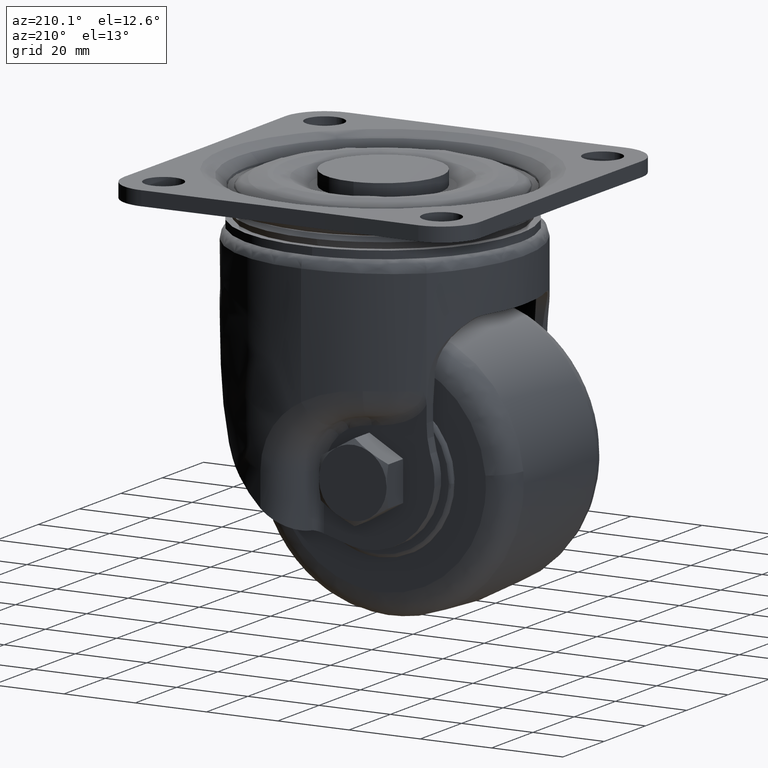
[diagram: clean part render]
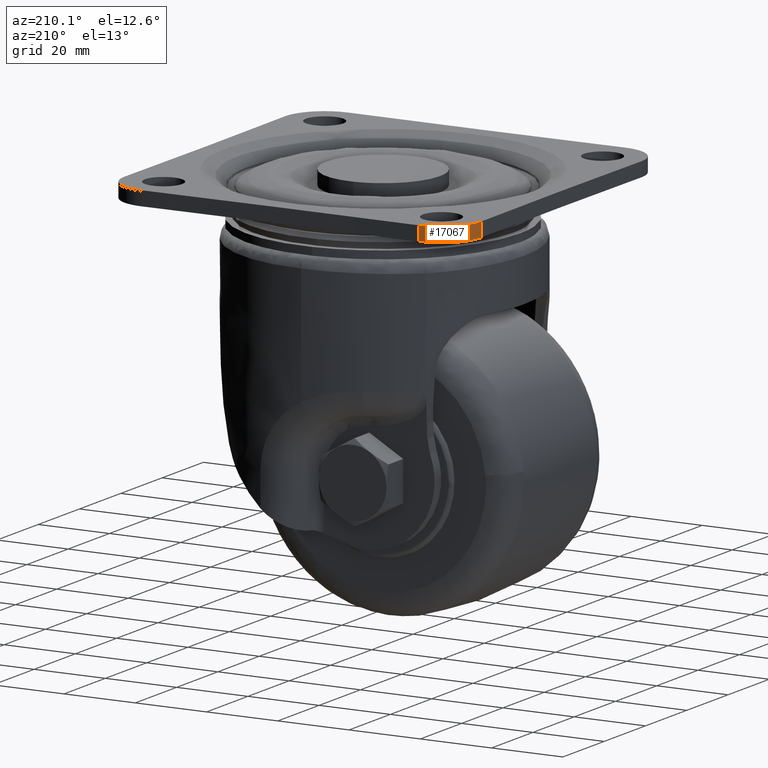
[diagram: same view with one face highlighted and labeled with its STEP entity id]
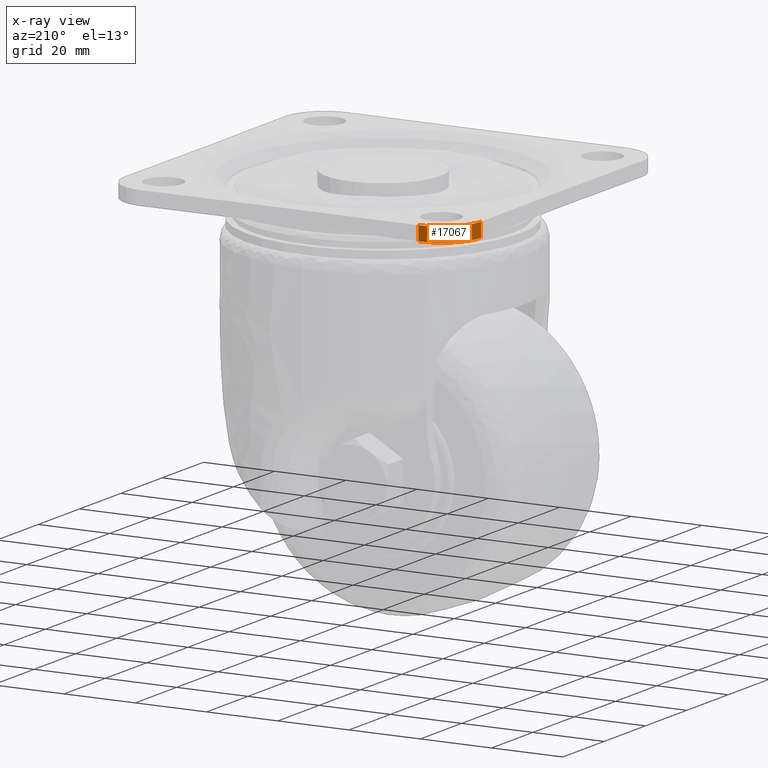
[diagram: x-ray of the same camera — body ghosted, the highlighted face saturated]
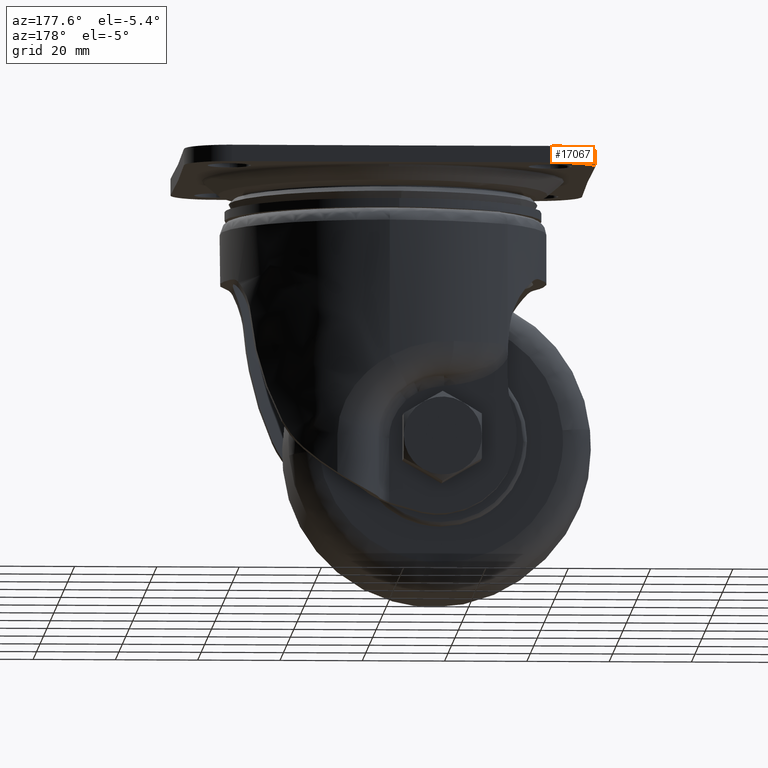
[diagram: same view with one face highlighted and labeled with its STEP entity id]
A machine part, auxiliary view. The second image highlights one B-rep face of the part: STEP entity #17067.
The next image is the same camera in x-ray: the body ghosted, the highlighted face saturated — about 0% of this face is hidden behind the body in this view.
A second angle (auxiliary view) of the same face is appended — the face is thin or edge-on in the first view.
In plain terms, the highlighted face is a freeform B-spline surface patch.
Its self-contained STEP definition (entity closure, byte-faithful):
#16683=CARTESIAN_POINT('',(-38.859172592322402,49.999087381304903,0.0));
#16684=VERTEX_POINT('',#16683);
#16698=CARTESIAN_POINT('',(-49.999113600735193,38.859141825077252,0.0));
#16699=VERTEX_POINT('',#16698);
#16700=CARTESIAN_POINT('',(-38.859172592322402,49.999087381304903,0.0));
#16701=CARTESIAN_POINT('',(-39.865213066904033,50.012390665620671,0.0));
#16702=CARTESIAN_POINT('',(-41.330838175129692,49.828501183736464,0.0));
#16703=CARTESIAN_POINT('',(-43.415812761010343,49.128430334916928,0.0));
#16704=CARTESIAN_POINT('',(-45.203847455734007,48.183912190046463,0.0));
#16705=CARTESIAN_POINT('',(-46.931267416434324,46.734482684405258,0.0));
#16706=CARTESIAN_POINT('',(-48.266529443362643,45.038211118198547,0.0));
#16707=CARTESIAN_POINT('',(-49.231586660992178,43.211739172483739,0.0));
#16708=CARTESIAN_POINT('',(-49.867787181001667,41.147497959673132,0.0));
#16709=CARTESIAN_POINT('',(-50.009207780252723,39.636500534122597,0.0));
#16710=CARTESIAN_POINT('',(-49.999113600735193,38.859141825077252,0.0));
#16711=B_SPLINE_CURVE_WITH_KNOTS('',3,(#16700,#16701,#16702,#16703,#16704,#16705,#16706,#16707,#16708,#16709,#16710),.UNSPECIFIED.,.F.,.U.,(4,1,1,1,1,1,1,1,4),(0.000000041193037,3.018236197495593,4.390163422996753,6.585253097896390,9.054691533246373,11.112583522299200,13.033292692487940,15.228390387014770,17.560649248636580),.UNSPECIFIED.);
#16712=EDGE_CURVE('',#16684,#16699,#16711,.T.);
#17003=CARTESIAN_POINT('',(-49.999113600735193,38.859141825077252,-4.000005999999945));
#17004=VERTEX_POINT('',#17003);
#17005=CARTESIAN_POINT('',(-49.999113600735193,38.859141825077252,-4.000005999999945));
#17006=CARTESIAN_POINT('',(-49.999113600735193,38.859141825077252,0.0));
#17007=QUASI_UNIFORM_CURVE('',1,(#17005,#17006),.UNSPECIFIED.,.F.,.U.);
#17008=EDGE_CURVE('',#17004,#16699,#17007,.T.);
#17027=CARTESIAN_POINT('',(-49.987207298379552,38.469448015062532,-4.100006149999944));
#17028=CARTESIAN_POINT('',(-49.987207298379552,38.469448015062532,0.102500153749999));
#17029=CARTESIAN_POINT('',(-50.593165121898593,51.014169969268217,-4.100006149999944));
#17030=CARTESIAN_POINT('',(-50.593165121898593,51.014169969268217,0.102500153749999));
#17031=CARTESIAN_POINT('',(-38.078028955668429,49.961268961133307,-4.100006149999944));
#17032=CARTESIAN_POINT('',(-38.078028955668429,49.961268961133307,0.102500153749998));
#17040=(BOUNDED_SURFACE()B_SPLINE_SURFACE(1,2,((#17027,#17029,#17031),(#17028,#17030,#17032)),.UNSPECIFIED.,.F.,.F.,.U.)B_SPLINE_SURFACE_WITH_KNOTS((2,2),(3,3),(0.0,4.202506303749942),(0.0,19.953039543417550),.UNSPECIFIED.)GEOMETRIC_REPRESENTATION_ITEM()RATIONAL_B_SPLINE_SURFACE(((1.0,0.657748628516973,0.996637401159318),(1.0,0.657748628516973,0.996637401159318)))REPRESENTATION_ITEM('')SURFACE());
#17041=ORIENTED_EDGE('',*,*,#16712,.F.);
#17042=CARTESIAN_POINT('',(-38.859172592322402,49.999087381304903,-4.000005999999945));
#17043=VERTEX_POINT('',#17042);
#17044=CARTESIAN_POINT('',(-38.859172592322402,49.999087381304903,-4.000005999999945));
#17045=CARTESIAN_POINT('',(-38.859172592322402,49.999087381304903,0.0));
#17046=QUASI_UNIFORM_CURVE('',1,(#17044,#17045),.UNSPECIFIED.,.F.,.U.);
#17047=EDGE_CURVE('',#17043,#16684,#17046,.T.);
#17048=ORIENTED_EDGE('',*,*,#17047,.F.);
#17049=CARTESIAN_POINT('',(-38.859172592322402,49.999087381304903,-4.000005999999945));
#17050=CARTESIAN_POINT('',(-39.865215246077952,50.012394350081053,-4.000005999999941));
#17051=CARTESIAN_POINT('',(-41.330829807296517,49.828485654199881,-4.000005999999963));
#17052=CARTESIAN_POINT('',(-43.415831220775893,49.128461967387103,-4.000005999999901));
#17053=CARTESIAN_POINT('',(-45.041250099649147,48.269692176618634,-4.000006000000011));
#17054=CARTESIAN_POINT('',(-46.548660317021707,47.067628872331120,-4.000005999999901));
#17055=CARTESIAN_POINT('',(-47.810214679658671,45.673475423619102,-4.000005999999982));
#17056=CARTESIAN_POINT('',(-48.821938831064870,44.085159640201837,-4.000005999999918));
#17057=CARTESIAN_POINT('',(-49.461787123870771,42.511784502138852,-4.000005999999922));
#17058=CARTESIAN_POINT('',(-49.901995124585802,40.781168723422383,-4.000005999999981));
#17059=CARTESIAN_POINT('',(-50.009227833379683,39.636507151425860,-4.000005999999939));
#17060=CARTESIAN_POINT('',(-49.999113600735193,38.859141825077252,-4.000005999999945));
#17061=B_SPLINE_CURVE_WITH_KNOTS('',3,(#17049,#17050,#17051,#17052,#17053,#17054,#17055,#17056,#17057,#17058,#17059,#17060),.UNSPECIFIED.,.F.,.U.,(4,1,1,1,1,1,1,1,1,4),(0.000000041193037,3.018236197495593,4.390163422996753,6.585253097896390,8.505953651905578,10.152218443306090,12.210133916401951,14.130839992902770,15.228390387014770,17.560649248636580),.UNSPECIFIED.);
#17062=EDGE_CURVE('',#17043,#17004,#17061,.T.);
#17063=ORIENTED_EDGE('',*,*,#17062,.T.);
#17064=ORIENTED_EDGE('',*,*,#17008,.T.);
#17065=EDGE_LOOP('',(#17041,#17048,#17063,#17064));
#17066=FACE_OUTER_BOUND('',#17065,.T.);
#17067=ADVANCED_FACE('',(#17066),#17040,.T.);